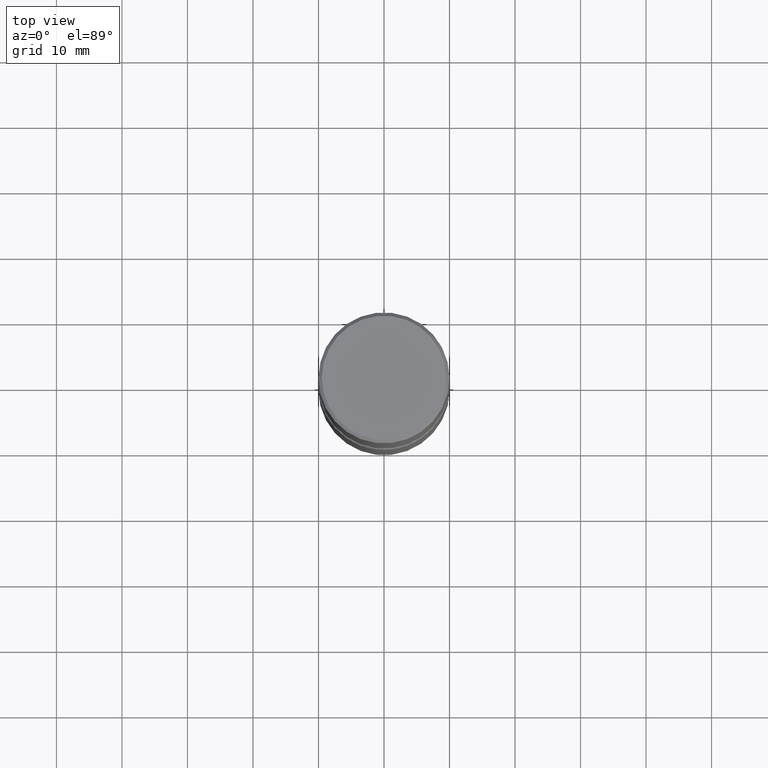
[diagram: clean part render]
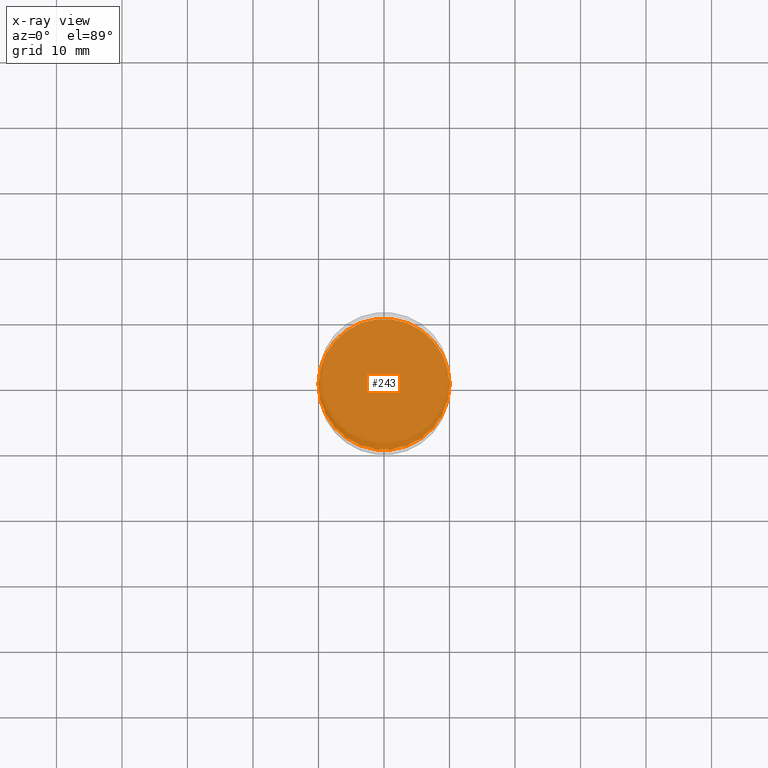
[diagram: x-ray — body ghosted, one internal face saturated and labeled with its STEP entity id]
A machine part, top view, then the same camera in x-ray: the body is ghosted and one INTERNAL B-rep face — a face not visible from any outside direction — is saturated and labeled: STEP entity #243.
In plain terms, the highlighted planar face has unit normal (0, -0, -1).
Its self-contained STEP definition (entity closure, byte-faithful):
#12 = CARTESIAN_POINT ( 'NONE',  ( 5.584228018923761589E-29, -7.972797637248326287E-15, -2.283500000000000973 ) ) ;
#31 = ORIENTED_EDGE ( 'NONE', *, *, #295, .T. ) ;
#41 = DIRECTION ( 'NONE',  ( 1.000000000000000000, -6.982962677686268288E-15, 0.000000000000000000 ) ) ;
#46 = AXIS2_PLACEMENT_3D ( 'NONE', #12, #524, #171 ) ;
#57 = DIRECTION ( 'NONE',  ( -1.000000000000000000, 6.982962677686265922E-15, -4.876176775795935793E-29 ) ) ;
#58 = VERTEX_POINT ( 'NONE', #115 ) ;
#67 = ORIENTED_EDGE ( 'NONE', *, *, #141, .T. ) ;
#83 = CARTESIAN_POINT ( 'NONE',  ( -0.3937000000000004385, -8.336054368548563224E-15, -2.283500000000000973 ) ) ;
#84 = FACE_OUTER_BOUND ( 'NONE', #355, .T. ) ;
#102 = CARTESIAN_POINT ( 'NONE',  ( 5.584228018923761589E-29, -7.972797637248326287E-15, -2.283500000000000973 ) ) ;
#107 = CIRCLE ( 'NONE', #248, 0.3937000000000004385 ) ;
#115 = CARTESIAN_POINT ( 'NONE',  ( 0.3937000000000004385, -1.072199004345341266E-14, -2.283500000000000973 ) ) ;
#141 = EDGE_CURVE ( 'NONE', #143, #58, #107, .T. ) ;
#143 = VERTEX_POINT ( 'NONE', #83 ) ;
#171 = DIRECTION ( 'NONE',  ( 1.000000000000000000, -6.982962677686268288E-15, 0.000000000000000000 ) ) ;
#188 = CIRCLE ( 'NONE', #46, 0.3937000000000004385 ) ;
#211 = DIRECTION ( 'NONE',  ( -2.445468806185136597E-29, 3.491481338843145583E-15, 1.000000000000000000 ) ) ;
#243 = ADVANCED_FACE ( 'NONE', ( #84 ), #515, .F. ) ;
#248 = AXIS2_PLACEMENT_3D ( 'NONE', #255, #211, #41 ) ;
#255 = CARTESIAN_POINT ( 'NONE',  ( 5.584228018923761589E-29, -7.972797637248326287E-15, -2.283500000000000973 ) ) ;
#295 = EDGE_CURVE ( 'NONE', #58, #143, #188, .T. ) ;
#355 = EDGE_LOOP ( 'NONE', ( #31, #67 ) ) ;
#439 = DIRECTION ( 'NONE',  ( 2.438088387897960049E-29, -3.491481338843145188E-15, -1.000000000000000000 ) ) ;
#511 = AXIS2_PLACEMENT_3D ( 'NONE', #102, #439, #57 ) ;
#515 = PLANE ( 'NONE',  #511 ) ;
#524 = DIRECTION ( 'NONE',  ( -2.445468806185136597E-29, 3.491481338843145583E-15, 1.000000000000000000 ) ) ;